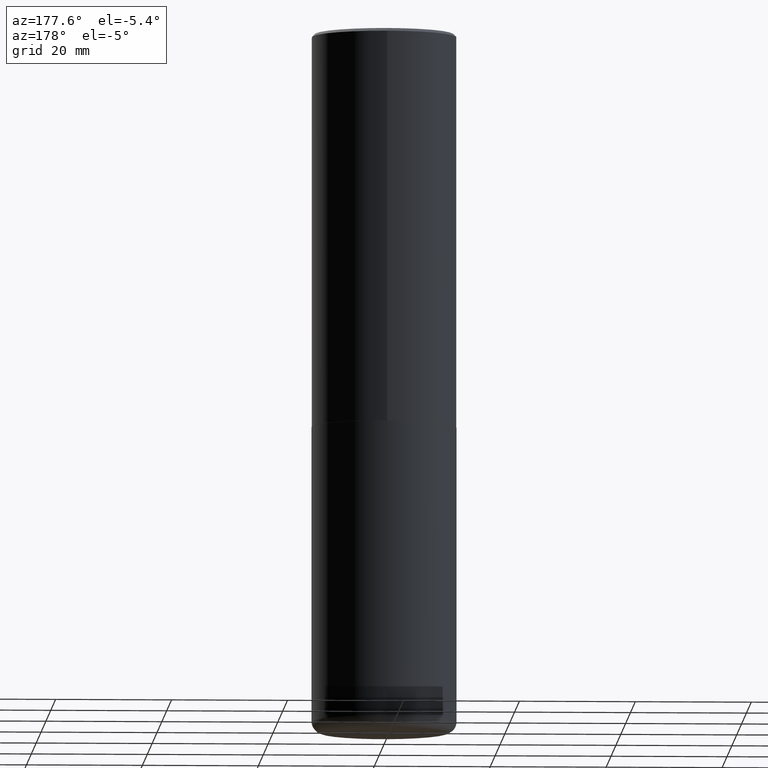
[diagram: clean part render]
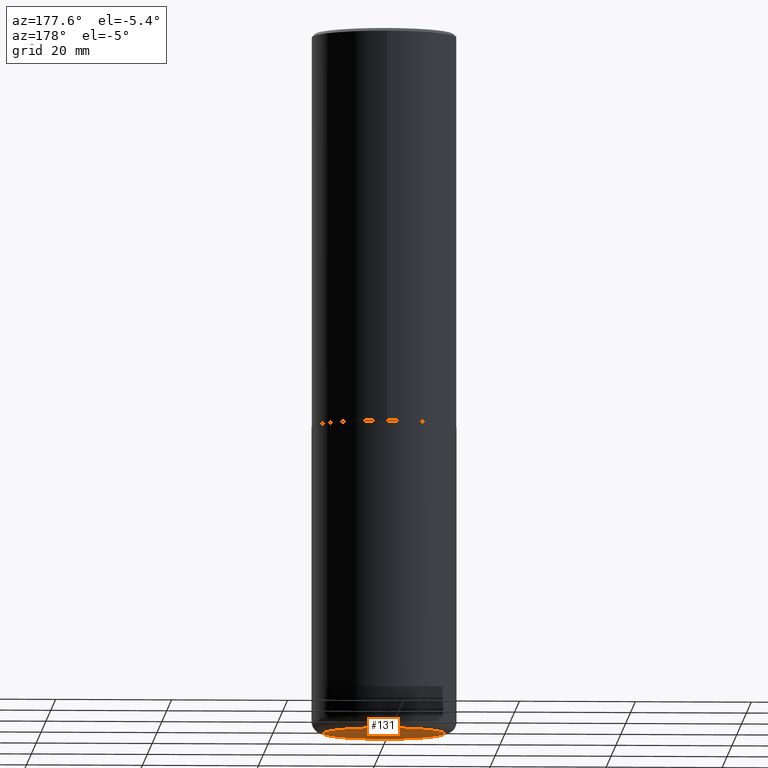
[diagram: same view with one face highlighted and labeled with its STEP entity id]
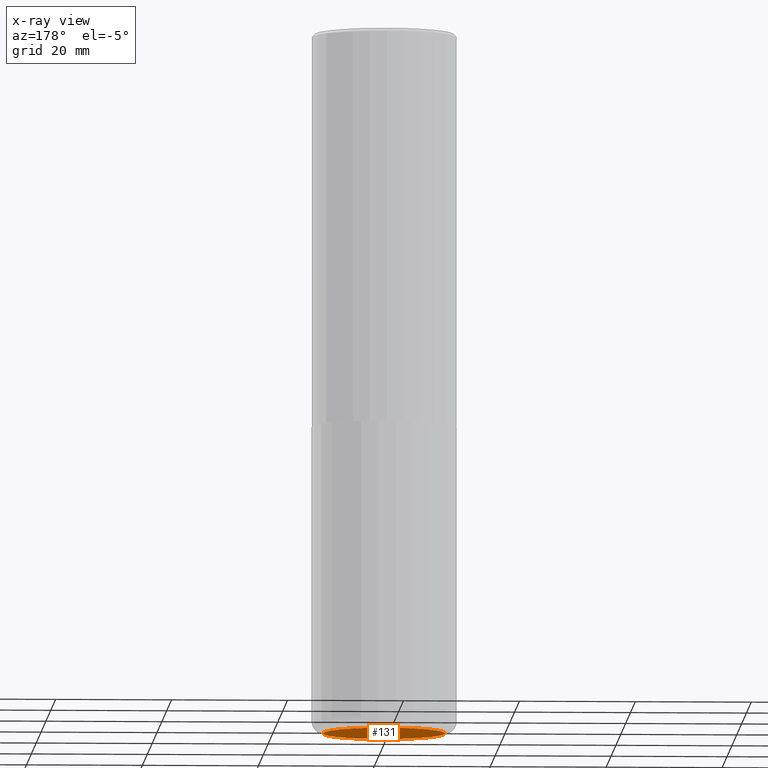
[diagram: x-ray of the same camera — body ghosted, the highlighted face saturated]
A machine part, auxiliary view. The second image highlights one B-rep face of the part: STEP entity #131.
The next image is the same camera in x-ray: the body ghosted, the highlighted face saturated — about 0% of this face is hidden behind the body in this view.
In plain terms, the highlighted planar face has unit normal (0, -0, -1).
Its self-contained STEP definition (entity closure, byte-faithful):
#7 = ORIENTED_EDGE ( 'NONE', *, *, #257, .F. ) ;
#10 = AXIS2_PLACEMENT_3D ( 'NONE', #203, #330, #230 ) ;
#36 = DIRECTION ( 'NONE',  ( 1.000000000000000000, -6.982962677686261977E-15, 0.000000000000000000 ) ) ;
#57 = CARTESIAN_POINT ( 'NONE',  ( 7.253733539357195705E-29, -2.292802777390881521E-14, -4.763799999999999812 ) ) ;
#71 = VERTEX_POINT ( 'NONE', #151 ) ;
#72 = AXIS2_PLACEMENT_3D ( 'NONE', #322, #320, #36 ) ;
#88 = FACE_OUTER_BOUND ( 'NONE', #376, .T. ) ;
#105 = AXIS2_PLACEMENT_3D ( 'NONE', #57, #188, #253 ) ;
#131 = ADVANCED_FACE ( 'NONE', ( #88 ), #348, .T. ) ;
#151 = CARTESIAN_POINT ( 'NONE',  ( 0.4134499999999999287, -1.951982472107036283E-14, -4.763799999999999812 ) ) ;
#164 = CIRCLE ( 'NONE', #10, 0.4134499999999999287 ) ;
#176 = VERTEX_POINT ( 'NONE', #319 ) ;
#188 = DIRECTION ( 'NONE',  ( 2.438088387897960049E-29, -3.491481338843145188E-15, -1.000000000000000000 ) ) ;
#203 = CARTESIAN_POINT ( 'NONE',  ( 1.164972429890475522E-28, -1.663271880198097847E-14, -4.763799999999999812 ) ) ;
#230 = DIRECTION ( 'NONE',  ( 1.000000000000000000, -6.982962677686261977E-15, 0.000000000000000000 ) ) ;
#253 = DIRECTION ( 'NONE',  ( -1.000000000000000000, 6.982962677686265922E-15, -4.876176775795935793E-29 ) ) ;
#257 = EDGE_CURVE ( 'NONE', #176, #71, #387, .T. ) ;
#319 = CARTESIAN_POINT ( 'NONE',  ( -0.4134499999999999287, -1.327799150377576435E-14, -4.763799999999999812 ) ) ;
#320 = DIRECTION ( 'NONE',  ( -2.445468806185136597E-29, 3.491481338843145583E-15, 1.000000000000000000 ) ) ;
#322 = CARTESIAN_POINT ( 'NONE',  ( 1.164972429890475522E-28, -1.663271880198097847E-14, -4.763799999999999812 ) ) ;
#330 = DIRECTION ( 'NONE',  ( -2.445468806185136597E-29, 3.491481338843145583E-15, 1.000000000000000000 ) ) ;
#348 = PLANE ( 'NONE',  #105 ) ;
#376 = EDGE_LOOP ( 'NONE', ( #395, #7 ) ) ;
#387 = CIRCLE ( 'NONE', #72, 0.4134499999999999287 ) ;
#395 = ORIENTED_EDGE ( 'NONE', *, *, #418, .F. ) ;
#418 = EDGE_CURVE ( 'NONE', #71, #176, #164, .T. ) ;